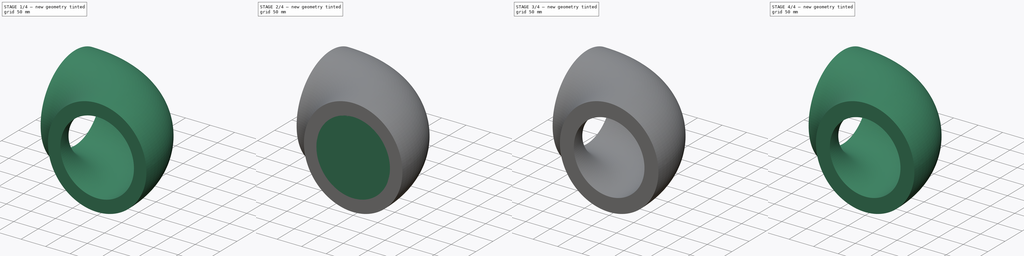
[diagram: build sequence overview — one tinted view per stage of 4, left to right]
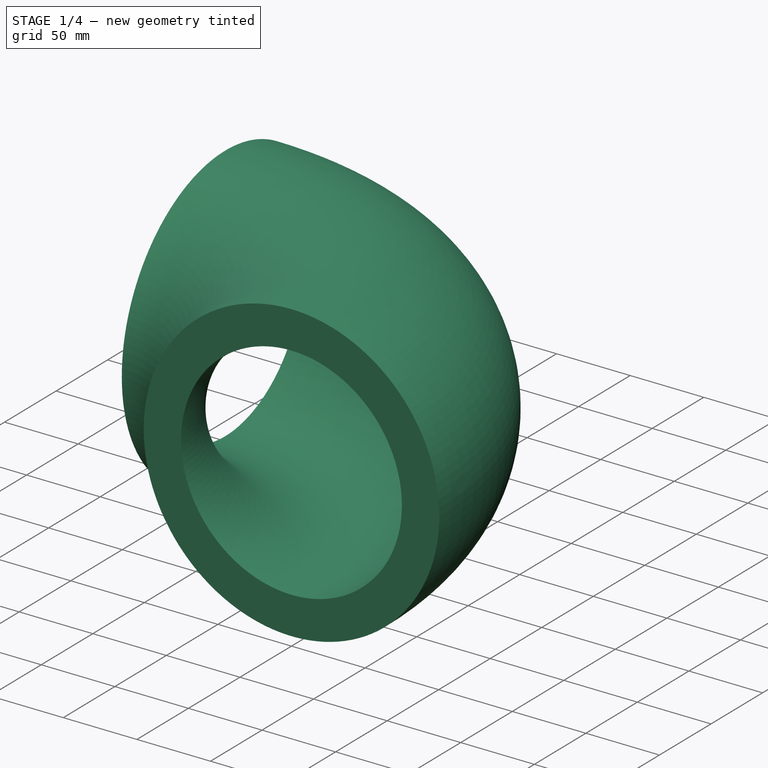
[diagram: stage 1 of 4 — iso view after this stage's code; geometry added in this stage tinted green]
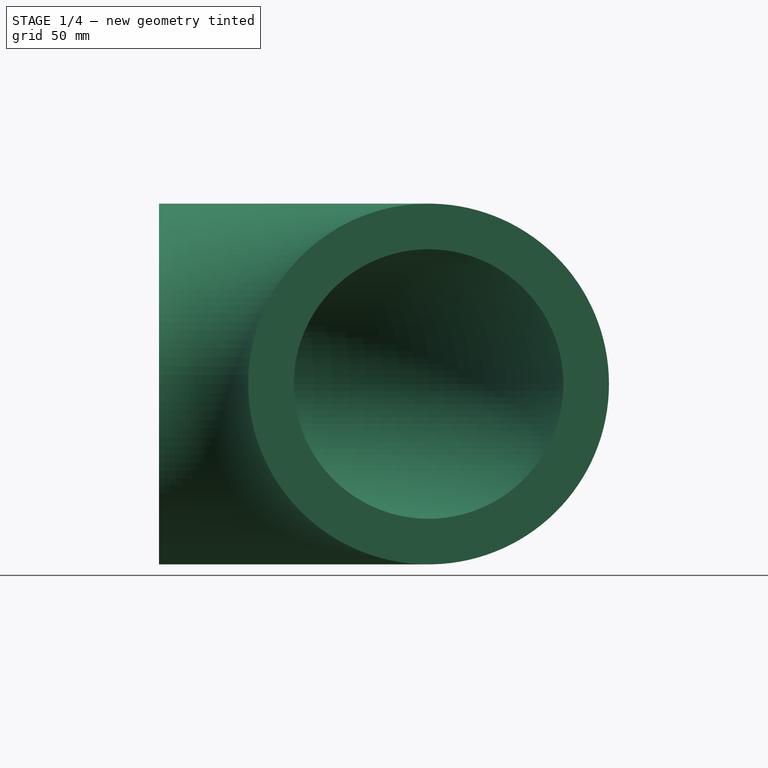
[diagram: stage 1 of 4 — front view after this stage's code; geometry added in this stage tinted green]
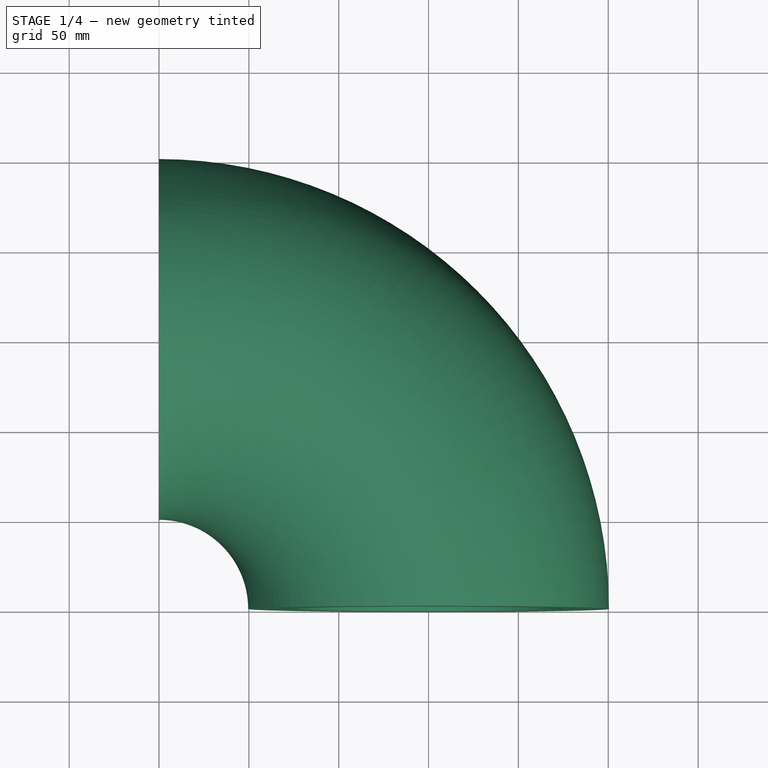
[diagram: stage 1 of 4 — top view after this stage's code; geometry added in this stage tinted green]
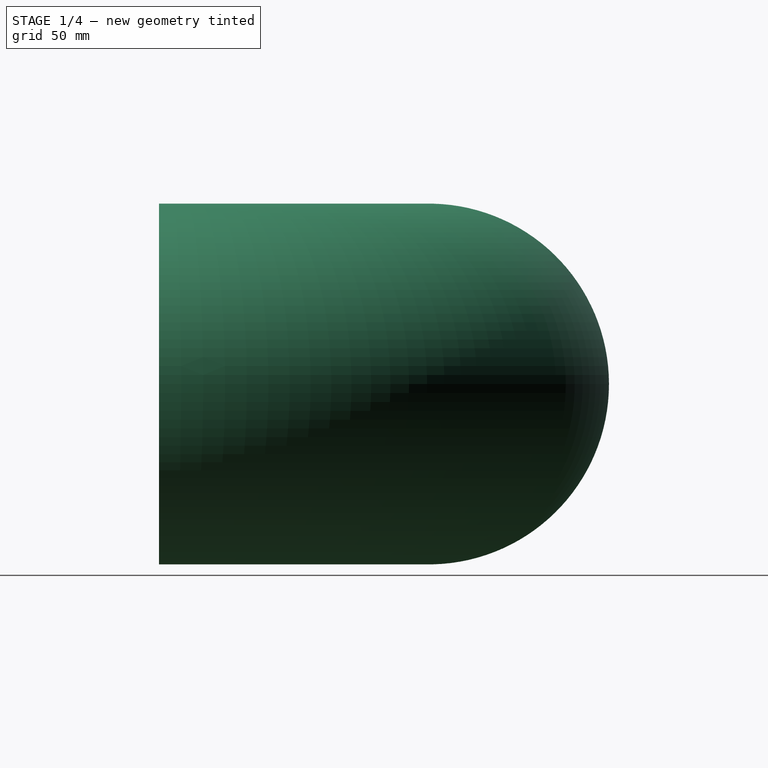
[diagram: stage 1 of 4 — right view after this stage's code; geometry added in this stage tinted green]
FCSTD DOCUMENT  (FreeCAD 0.16R6704 (Git))
Label: Round_bend_reduction
License: All rights reserved
LicenseURL: http://en.wikipedia.org/wiki/All_rights_reserved
objects: App::DocumentObjectGroup×7, Sketcher::SketchObject×5, Part::FeaturePython×4, Part::Extrusion×3, Part::Sweep×2, Part::Thickness×2, Part::Compound×1, Spreadsheet::Sheet×1
note: 17 computed .brp shape members not serialized (recipe doc carries the construction recipe); baked Part::Feature solids carry a one-line shape summary decoded from their .brp

FEATURE [Sketcher::SketchObject] Sketch052  label="ANGLE_RADIUS_conector "
  expr: Constraints.Axis_radius = Settings_pipe_bend.r_axis
  expr: Constraints.Curvature_angle = Settings_pipe_bend.a_curvature
  sketch-geometry (3):
    g0: LineSegment [constr] StartX=-3.2e-11 StartY=0 StartZ=0 EndX=-1.6e-11 EndY=-150 EndZ=0
    g1: LineSegment [constr] StartX=-1.6e-11 StartY=-150 StartZ=0 EndX=150 EndY=-150 EndZ=0
    g2: ArcOfCircle CenterX=-1.6e-11 CenterY=-150 CenterZ=0 NormalX=0 NormalY=0 NormalZ=1 Radius=150 StartAngle=0 EndAngle=1.5708
  constraints (9):
    c: Coincident(g0,g1)
    c: Coincident(g2,g0)
    c: Coincident(g2,g0)
    c: Coincident(g2,g1)
    c: Angle(g0) = -1.5708
    c: Angle(g1,g0) = 1.5708  'Curvature_angle'
    c: Radius(g2) = 150  'Axis_radius'
    c: DistanceX(g-1,g0) = 0
    c: DistanceY(g0,g-1) = 0
FEATURE [Sketcher::SketchObject] Sketch053  label="RADIUS_circle_01"
  Placement = pos=(0,0,0) rot=(0.57735,0.57735,0.57735;2.0944rad)
  expr: Constraints.Radius_01 = Settings_pipe_bend.r_side_1
  sketch-geometry (1):
    g0: Circle CenterX=0 CenterY=0 CenterZ=0 NormalX=0 NormalY=0 NormalZ=1 Radius=75
  constraints (3):
    c: Radius(g0) = 75  'Radius_01'
    c: DistanceY(g-1,g0) = 0  'Vertical_distance_axis'
    c: DistanceX(g-1,g0) = 0  'Horizontal_distance_axis'
FEATURE [Part::Sweep] Sweep022  label="Base_01 "
  Frenet = false
  Sections = -> [Sketch053]
  Solid = true
  Spine = -> Sketch052
  Transition = 1
FEATURE [Sketcher::SketchObject] Sketch054  label="RADIOUS_circle_02"
  ExternalGeometry = -> [Sweep022]
  Placement = pos=(0,-150,0) rot=(1,0,0;1.5708rad)
  Support = -> Sweep022 [Face2]
  expr: Constraints.Horizontal_distance_axis = Settings_pipe_bend.d_h_axis_02
  expr: Constraints.Radious_02 = Settings_pipe_bend.r_side_2
  expr: Constraints.Vertical_distance_axis = Settings_pipe_bend.d_v_axis_02
  sketch-geometry (1):
    g0: Circle CenterX=150 CenterY=0 CenterZ=0 NormalX=0 NormalY=0 NormalZ=1 Radius=75
  constraints (3):
    c: Radius(g0) = 75  'Radious_02'
    c: DistanceX(g-3,g0) = 0  'Horizontal_distance_axis'
    c: DistanceY(g-3,g0) = 0  'Vertical_distance_axis'
FEATURE [Part::Sweep] Sweep023  label="Base_02"
  Frenet = true
  Sections = -> [Sketch053,Sketch054]
  Solid = true
  Spine = -> Sketch052 [Edge1]
  Transition = 1
FEATURE [Part::Thickness] Thickness019  label="02-Insulation_THICKNESS "
  Faces = -> Sweep023 [Face3,Face2]
  Intersection = false
  Join = 0
  Mode = 1
  SelfIntersection = false
  Value = 25.4
  expr: Value = Settings_pipe_bend.insu_thickness
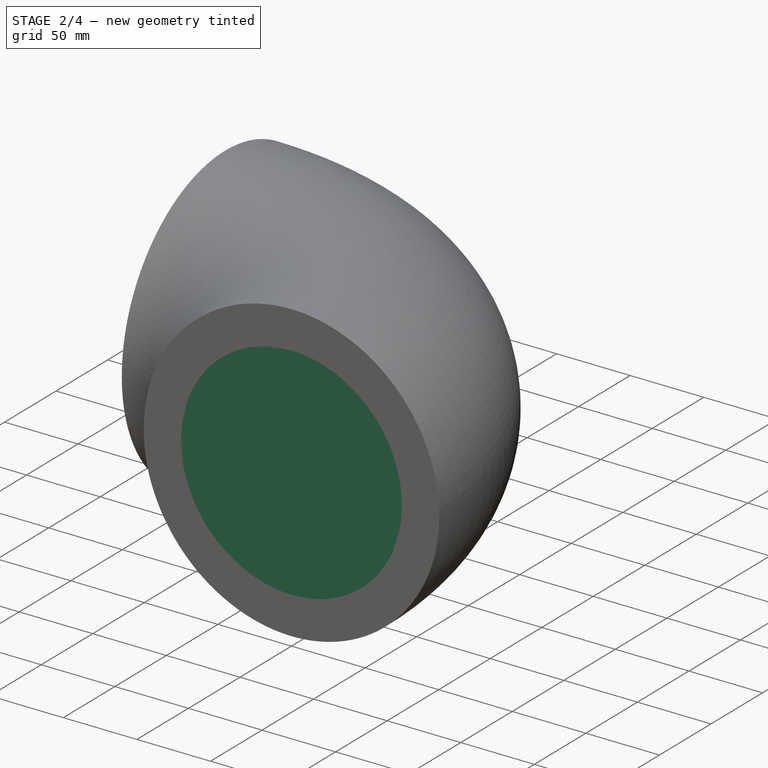
[diagram: stage 2 of 4 — iso view after this stage's code; geometry added in this stage tinted green]
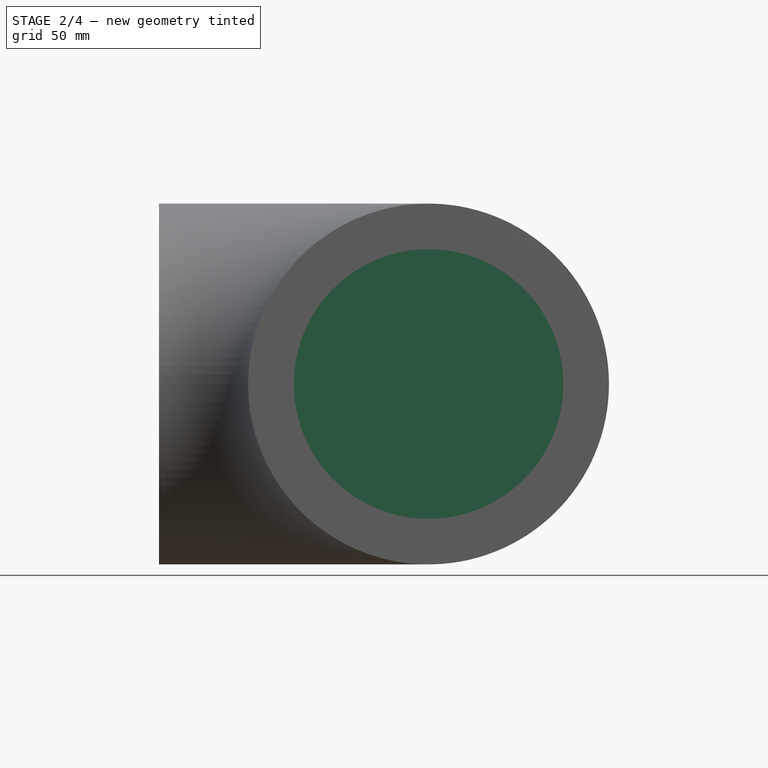
[diagram: stage 2 of 4 — front view after this stage's code; geometry added in this stage tinted green]
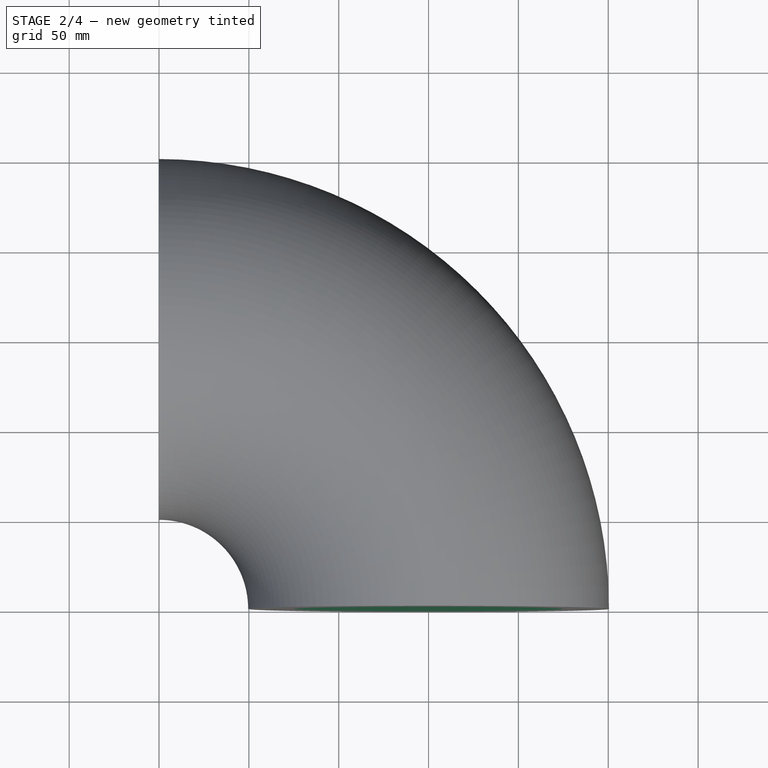
[diagram: stage 2 of 4 — top view after this stage's code; geometry added in this stage tinted green]
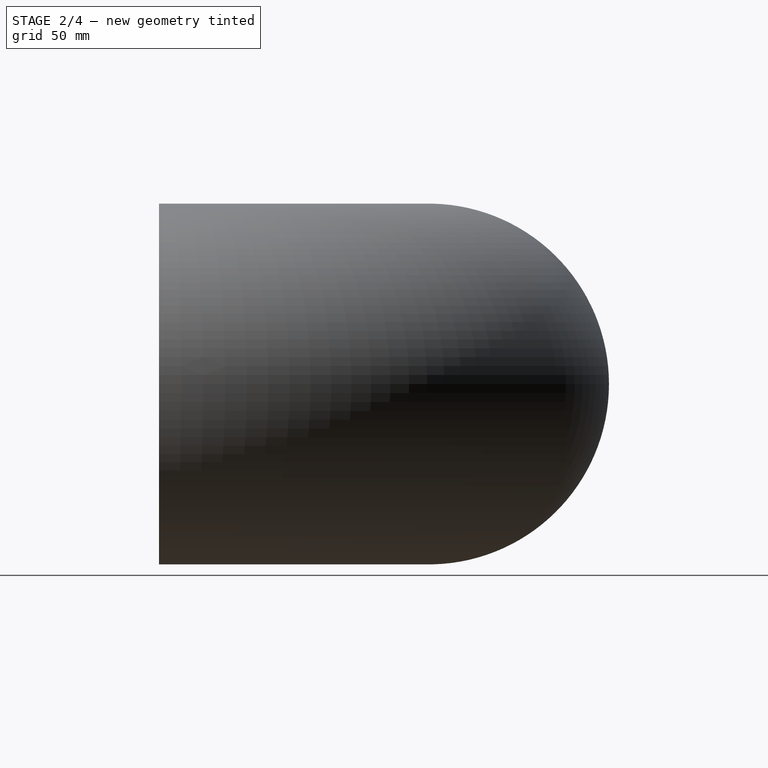
[diagram: stage 2 of 4 — right view after this stage's code; geometry added in this stage tinted green]
FEATURE [Part::Extrusion] Extrude_Sketch048  label="Base_flange_02 "
  Base = -> Sketch054
  Dir = (0,10,0)
  Solid = true
FEATURE [Sketcher::SketchObject] Sketch056  label="FLANGE_HEIGHT_01 "
  ExternalGeometry = -> [Sweep022]
  Placement = pos=(-3.2e-11,0,0) rot=(0.57735,-0.57735,-0.57735;2.0944rad)
  Support = -> Sweep022 [Face3]
  expr: Constraints.Flange_01 = Settings_pipe_bend.flange_height
  sketch-geometry (4):
    g0: Circle CenterX=0 CenterY=0 CenterZ=0 NormalX=0 NormalY=0 NormalZ=1 Radius=75
    g1: Circle CenterX=0 CenterY=0 CenterZ=0 NormalX=0 NormalY=0 NormalZ=1 Radius=90
    g2: LineSegment [constr] StartX=-75 StartY=0 StartZ=0 EndX=-90 EndY=-3e-12 EndZ=0
    g3: LineSegment [constr] StartX=-75 StartY=0 StartZ=0 EndX=0 EndY=0 EndZ=0
  constraints (11):
    c: Coincident(g0,g-1)
    c: Coincident(g1,g-1)
    c: Equal(g0,g-3)
    c: PointOnObject(g2,g-3)
    c: PointOnObject(g2,g1)
    c: Angle(g2) = 3.14159
    c: DistanceY(g-1,g2) = 0
    c: DistanceX(g2,g2) = 15  'Flange_01'
    c: Coincident(g3,g2)
    c: Horizontal(g3)
    c: Coincident(g-1,g3)
FEATURE [App::DocumentObjectGroup] Grupo055  label="A-Bases "
  Group = -> [Sweep022,Sketch054,Extrude_Sketch048,Sketch055,Sketch056,Sketch052,Sweep023]
FEATURE [Part::Extrusion] Extrude_Sketch050  label="Flange_THICKNESS_01"
  Base = -> Sketch056
  Dir = (3,0,0)
  Solid = true
  expr: Dir.x = Settings_pipe_bend.flange_thickness
FEATURE [Part::Thickness] Thickness018  label="1.1-Bend_SHEET_THICKNESS "
  Faces = -> Sweep023 [Face3,Face2]
  Intersection = false
  Join = 0
  Mode = 1
  SelfIntersection = false
  Value = -3
  expr: Value = Settings_pipe_bend.sheet_thickness * -1
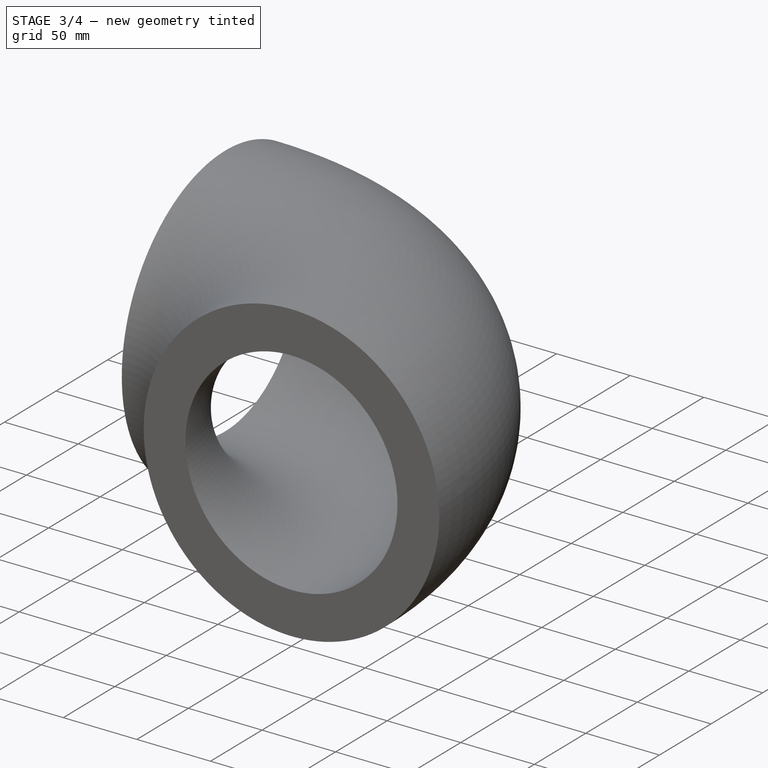
[diagram: stage 3 of 4 — iso view after this stage's code; geometry added in this stage tinted green]
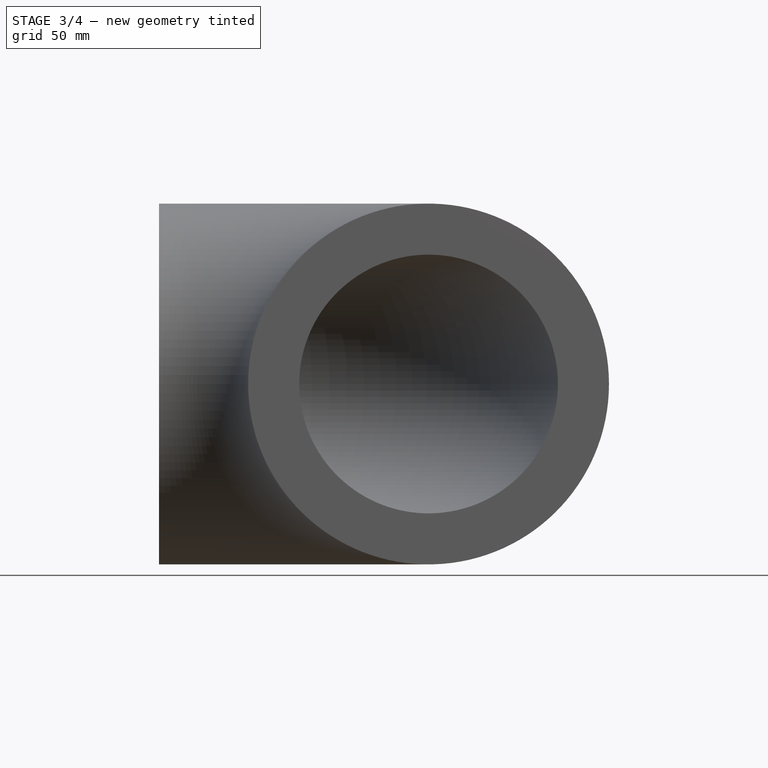
[diagram: stage 3 of 4 — front view after this stage's code; geometry added in this stage tinted green]
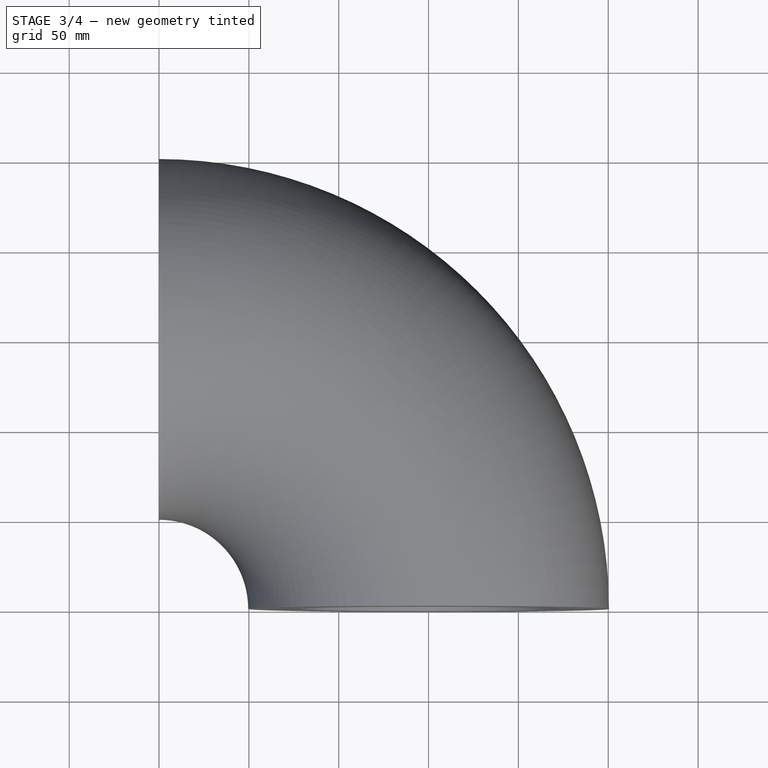
[diagram: stage 3 of 4 — top view after this stage's code; geometry added in this stage tinted green]
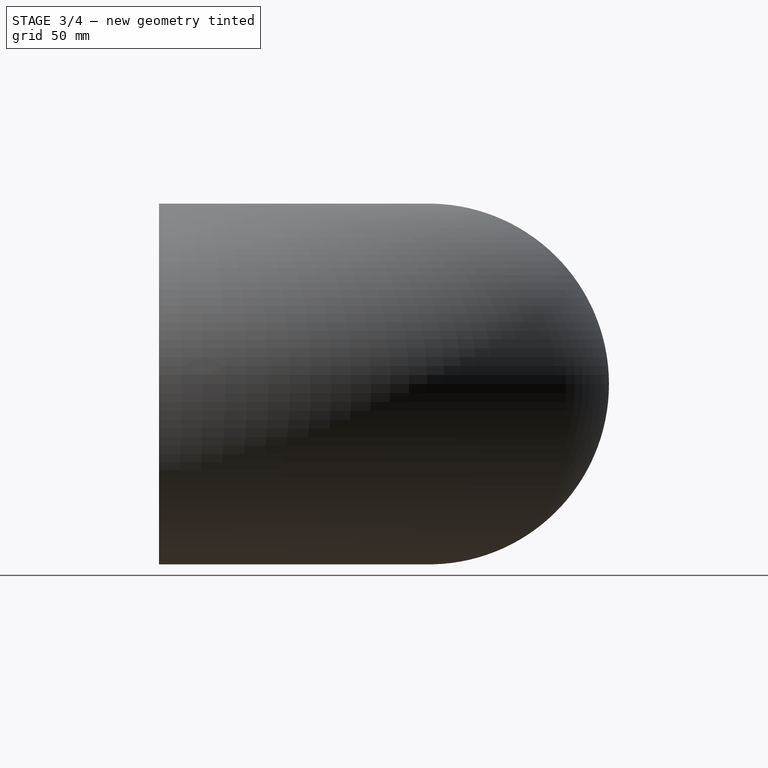
[diagram: stage 3 of 4 — right view after this stage's code; geometry added in this stage tinted green]
FEATURE [Sketcher::SketchObject] Sketch055  label="FLANGE_HEIGHT_02"
  ExternalGeometry = -> [Extrude_Sketch048]
  Placement = pos=(0,-150,0) rot=(1,0,0;1.5708rad)
  Support = -> Extrude_Sketch048 [Face2]
  expr: Constraints.Flange_02 = Settings_pipe_bend.flange_height
  sketch-geometry (4):
    g0: Circle CenterX=150 CenterY=0 CenterZ=0 NormalX=0 NormalY=0 NormalZ=1 Radius=75
    g1: Circle CenterX=150 CenterY=0 CenterZ=0 NormalX=0 NormalY=0 NormalZ=1 Radius=90
    g2: LineSegment [constr] StartX=75 StartY=0 StartZ=0 EndX=60 EndY=3e-12 EndZ=0
    g3: LineSegment [constr] StartX=150 StartY=0 StartZ=0 EndX=75 EndY=0 EndZ=0
  constraints (10):
    c: Coincident(g0,g-3)
    c: Coincident(g1,g0)
    c: Equal(g-3,g0)
    c: PointOnObject(g2,g-3)
    c: PointOnObject(g2,g1)
    c: DistanceX(g2,g2) = 15  'Flange_02'
    c: Coincident(g3,g0)  'Constraint7'
    c: Coincident(g3,g2)
    c: Horizontal(g3)
    c: Angle(g2,g3) = 3.14159
FEATURE [Part::Extrusion] Extrude_Sketch049  label="Flange_THICKNESS_02"
  Base = -> Sketch055
  Dir = (0,3,0)
  Solid = true
  expr: Dir.y = Settings_pipe_bend.flange_thickness
FEATURE [Part::Compound] Compound009  label="01-Bend_flanges"
  Links = -> [Thickness018,Extrude_Sketch050,Extrude_Sketch049]
FEATURE [Part::FeaturePython] Clone040  label="Clone of 02-Insulation "  # Draft clone (typed FeaturePython)
  Objects = -> [Thickness019]
  Scale = (1,1,1)
FEATURE [App::DocumentObjectGroup] Grupo058  label="No_flanges "
  Group = -> [Clone039,Clone040]
FEATURE [App::DocumentObjectGroup] Grupo057  label="B-Final_parts_clones"
  Group = -> [Grupo058,Grupo059]
FEATURE [App::DocumentObjectGroup] Group009  label="A-Components"
  Group = -> [Grupo055,Grupo056]
FEATURE [Spreadsheet::Sheet] Spreadsheet001  label="Settings_pipe_bend"
  cells = A1=Dimensionamento - Settings; A3=01. Lado 1 - Side 1; A4=1.1. Raio do lado 1 - Radius side 1:; B4(r_side_1)=75; C4=Alias: r_side_1; A6=02. Lado 2 - Side 2; A7=2.1. Raio do lado 2 - Radius side 2:; B7(r_side_2)=75; C7=Alias: r_side_2; A8=2.2. Distância horizontal do eixo - Horizontal distance axis:; B8(d_h_axis_02)=0; C8=Alias: d_h_axis_02; A9=2.3. Distância vertical do eixo - Vertical distance axis:; B9(d_v_axis_02)=0; C9=Alias: d_v_axis_02; A11=03. Ângulos e raios de curvaturas - Angles and curvature radius; A12=3.1. Ângulo da curvatura - Curvature angle:; B12(a_curvature)=90; C12=Alias: a_curvature; D12=Decreasing the bend angle does not present problem when the radii 1 and 2 are equal.; A13=3.2. Raio do eixo - Axis radius:; B13(r_axis)=150; C13=Alias: r_axis; A15=04. Espessura da chapa - Sheet thickness:; B15(sheet_thickness)=3; C15=Alias: sheet_thickness; A17=05. Flanges; A18=5.1. Altura flanges - Flanges height:; B18(flange_height)=15; C18=Alias: flange_height; A19=5.2. Espessura flanges - Flanges thickness:; B19(flange_thickness)=3; C19=Alias: flange_thickness; A21=06. Espessura isolamento - Insulation thickness:; B21(insu_thickness)=25.4; C21=Alias: insu_thickness; D21=It was not possible to make the difference between the gross volume of the insulation and the flanges.
FEATURE [App::DocumentObjectGroup] Grupo054  label="Round_bend_reduction"
  Group = -> [Spreadsheet001,Group009,Grupo057]
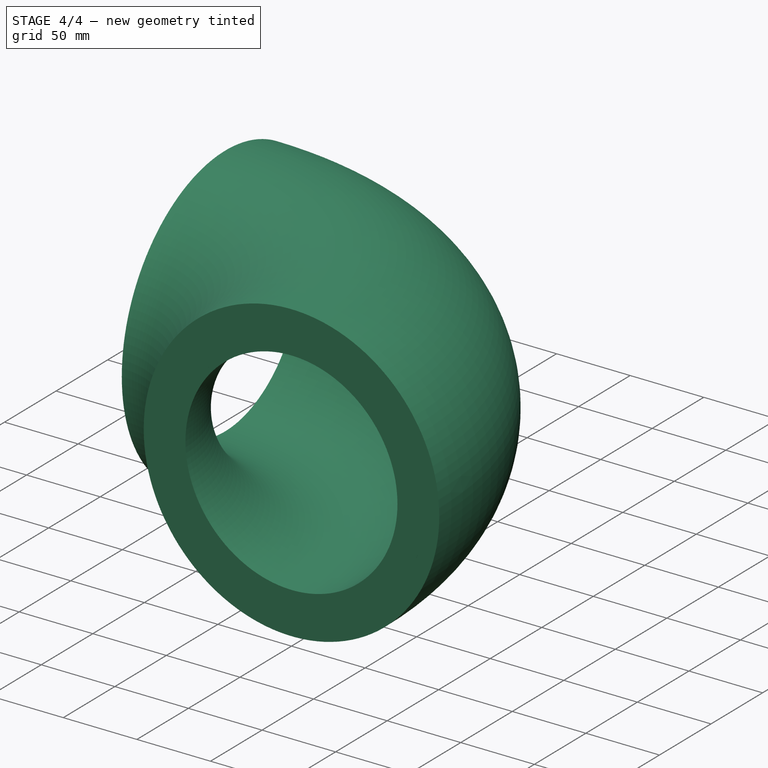
[diagram: stage 4 of 4 — iso view after this stage's code; geometry added in this stage tinted green]
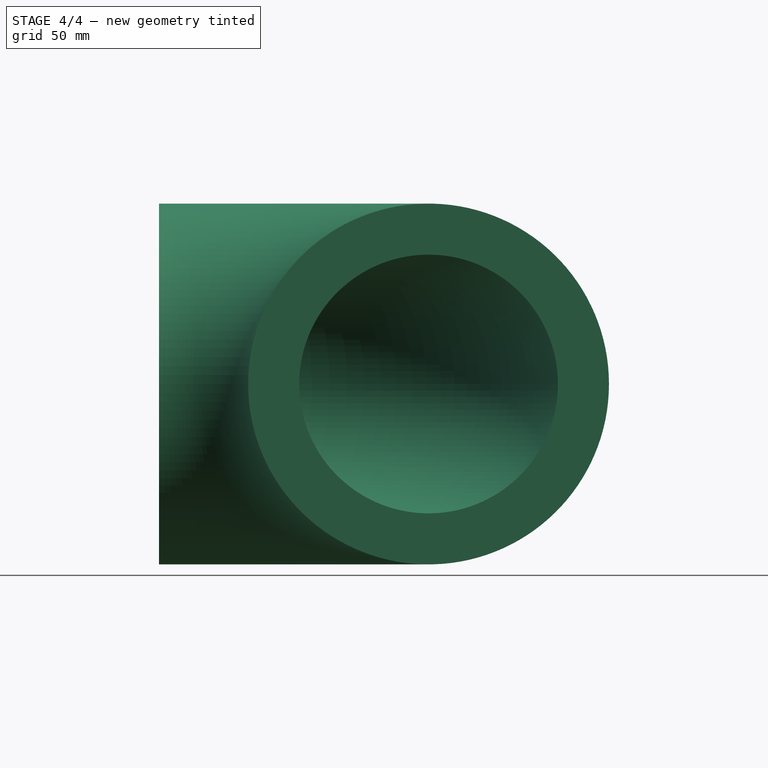
[diagram: stage 4 of 4 — front view after this stage's code; geometry added in this stage tinted green]
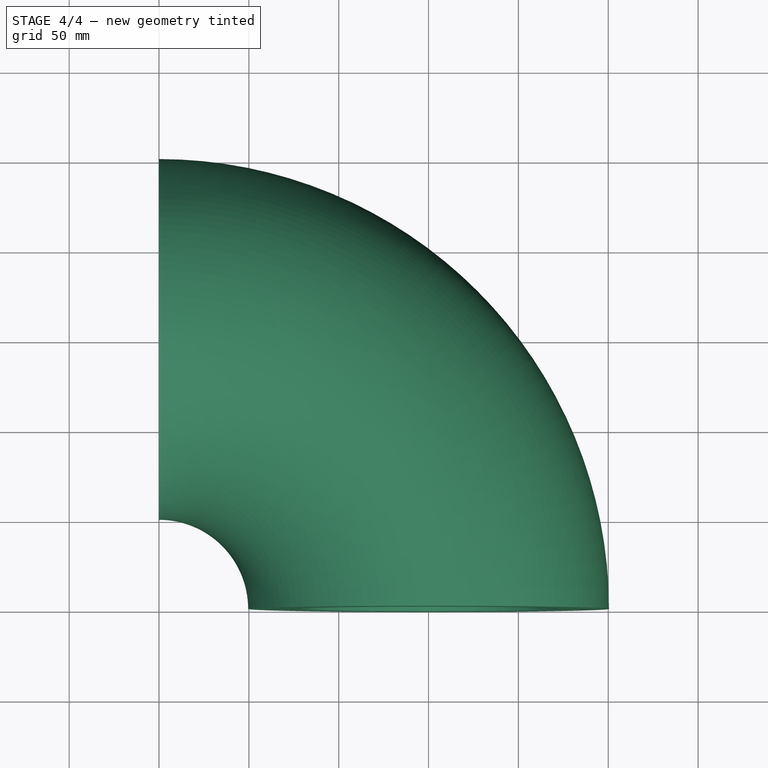
[diagram: stage 4 of 4 — top view after this stage's code; geometry added in this stage tinted green]
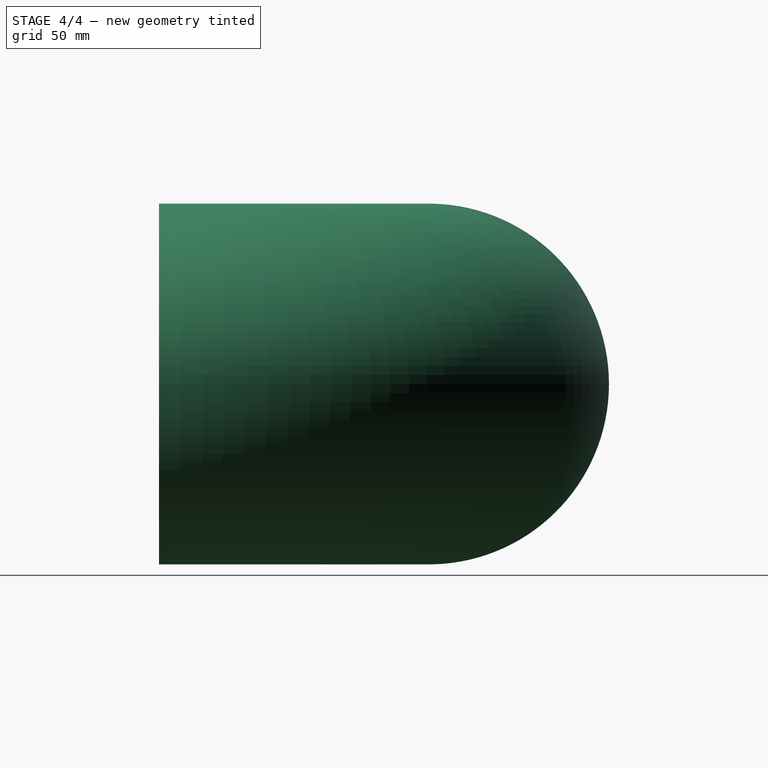
[diagram: stage 4 of 4 — right view after this stage's code; geometry added in this stage tinted green]
FEATURE [App::DocumentObjectGroup] Grupo056  label="B-Parts "
  Group = -> [Compound009,Thickness019]
FEATURE [Part::FeaturePython] Clone037  label="Clone of 01-Circular_bend_flanges "  # Draft clone (typed FeaturePython)
  Objects = -> [Compound009]
  Scale = (1,1,1)
FEATURE [Part::FeaturePython] Clone038  label="Clone of 02-Insulation 001"  # Draft clone (typed FeaturePython)
  Objects = -> [Thickness019]
  Scale = (1,1,1)
FEATURE [App::DocumentObjectGroup] Grupo059  label="Flanges "
  Group = -> [Clone037,Clone038]
FEATURE [Part::FeaturePython] Clone039  label="Clone of 1.1-Circular_bend_SHEET_THICKNESS "  # Draft clone (typed FeaturePython)
  Objects = -> [Thickness018]
  Scale = (1,1,1)
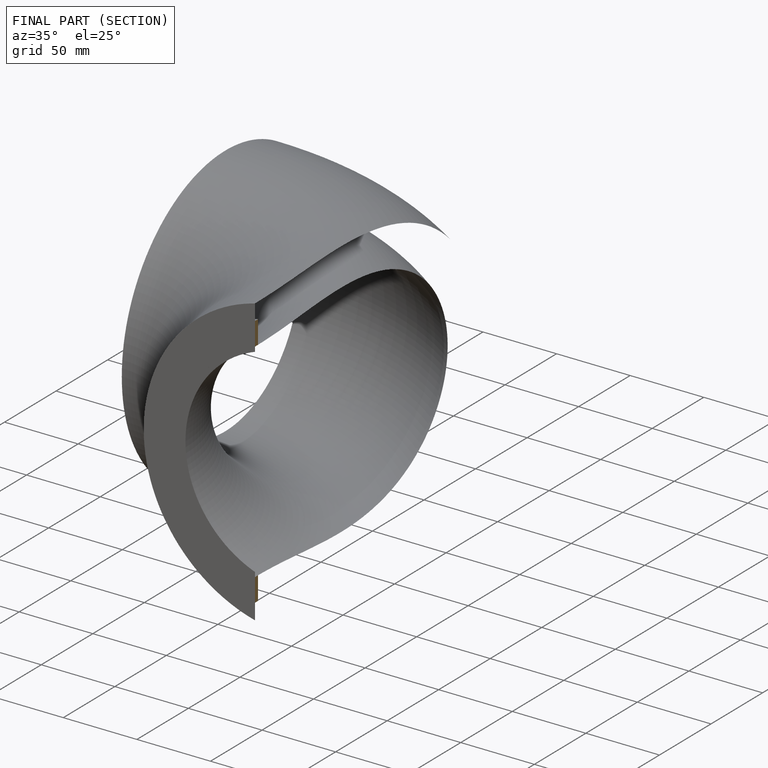
[diagram: finished part — half-section view (interior)]
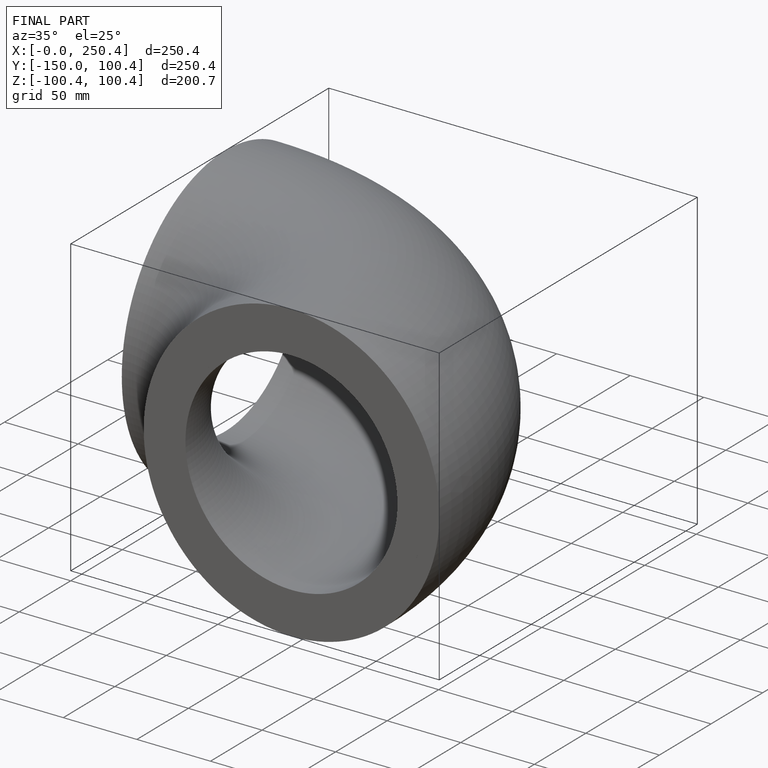
[diagram: finished part — iso view with bounding-box wireframe]
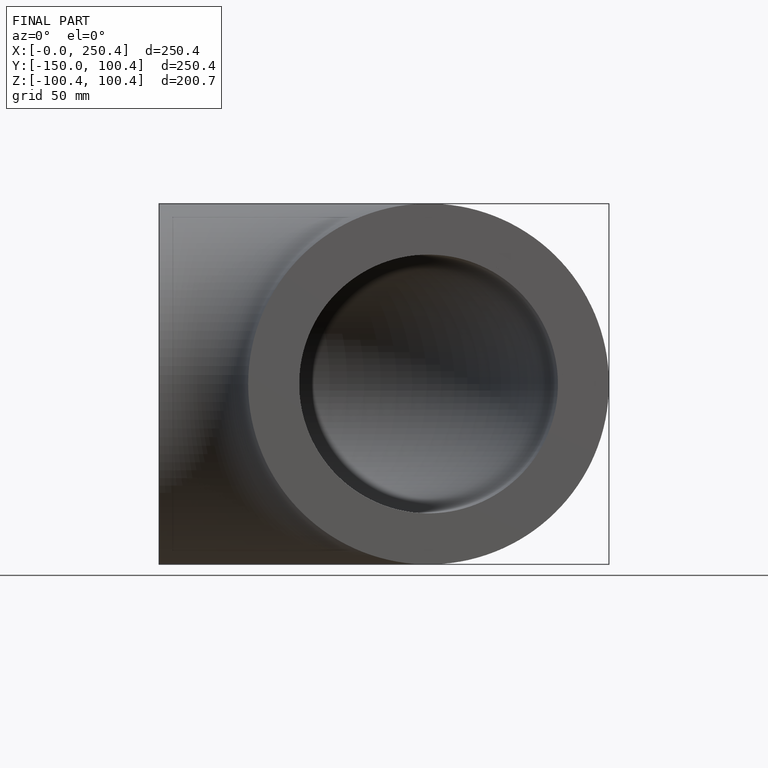
[diagram: finished part — front view with bounding-box wireframe]
